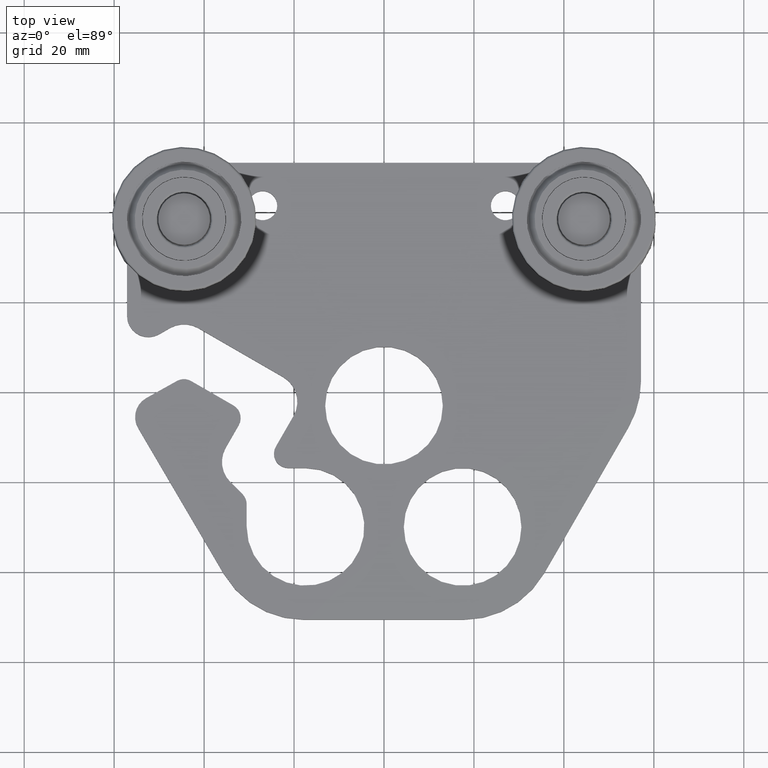
[diagram: clean part render]
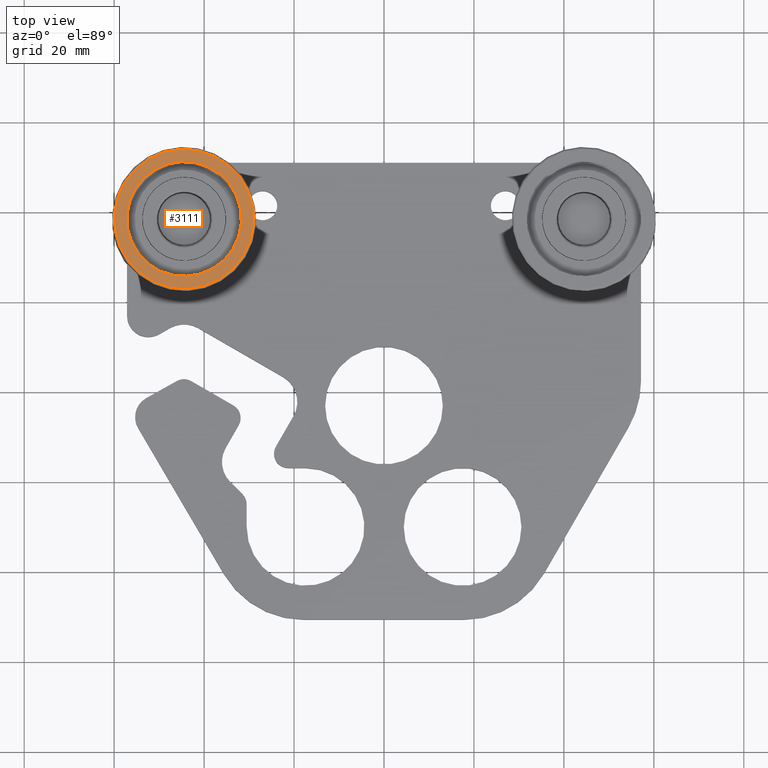
[diagram: same view with one face highlighted and labeled with its STEP entity id]
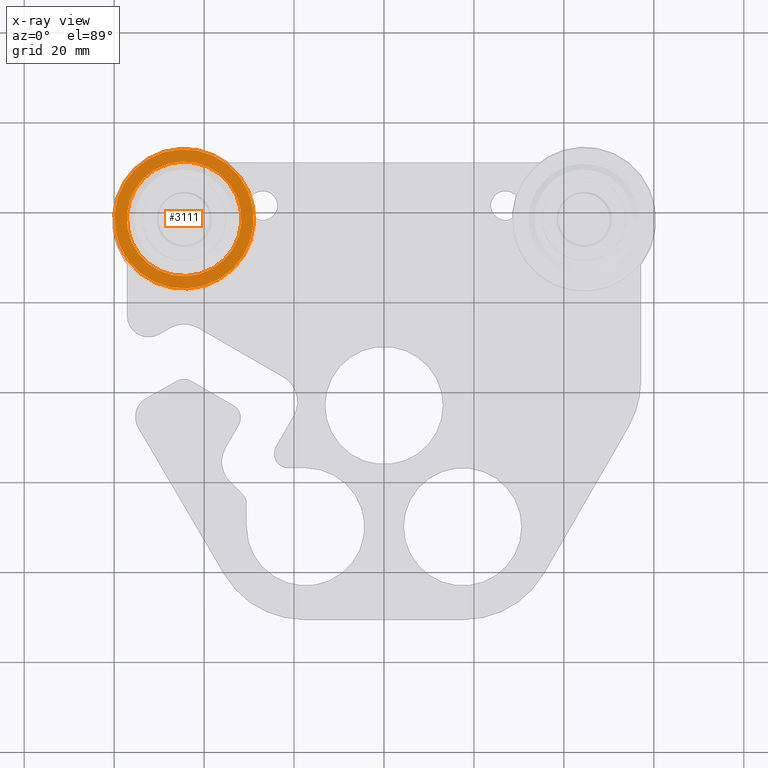
[diagram: x-ray of the same camera — body ghosted, the highlighted face saturated]
A machine part, top view. The second image highlights one B-rep face of the part: STEP entity #3111.
The next image is the same camera in x-ray: the body ghosted, the highlighted face saturated — about 0% of this face is hidden behind the body in this view.
In plain terms, the highlighted planar face has unit normal (0, 0, -1).
Its self-contained STEP definition (entity closure, byte-faithful):
#3053=CARTESIAN_POINT('',(-2.148985134104972,1.195396582901642,0.662700787401575));
#3054=VERTEX_POINT('',#3053);
#3055=CARTESIAN_POINT('',(-1.750000000000002,1.500000000000001,0.662700787401575));
#3056=DIRECTION('',(0.0,0.0,-1.0));
#3057=DIRECTION('',(-0.794840973040489,-0.606817787788104,0.0));
#3058=AXIS2_PLACEMENT_3D('',#3055,#3056,#3057);
#3059=CIRCLE('',#3058,0.501968503937008);
#3060=EDGE_CURVE('',#3054,#3054,#3059,.T.);
#3092=CARTESIAN_POINT('',(-1.750000000000002,1.500000000000001,0.662700787401575));
#3093=DIRECTION('',(0.0,0.0,-1.0));
#3094=DIRECTION('',(0.606817787788104,-0.794840973040489,0.0));
#3095=AXIS2_PLACEMENT_3D('',#3092,#3093,#3094);
#3096=PLANE('',#3095);
#3097=CARTESIAN_POINT('',(-1.264959248735137,1.870302193335261,0.662700787401575));
#3098=VERTEX_POINT('',#3097);
#3099=CARTESIAN_POINT('',(-1.750000000000002,1.500000000000001,0.662700787401575));
#3100=DIRECTION('',(0.0,0.0,1.0));
#3101=DIRECTION('',(-0.794840973040489,-0.606817787788104,0.0));
#3102=AXIS2_PLACEMENT_3D('',#3099,#3100,#3101);
#3103=CIRCLE('',#3102,0.610236220472441);
#3104=EDGE_CURVE('',#3098,#3098,#3103,.T.);
#3105=ORIENTED_EDGE('',*,*,#3104,.T.);
#3106=EDGE_LOOP('',(#3105));
#3107=FACE_OUTER_BOUND('',#3106,.T.);
#3108=ORIENTED_EDGE('',*,*,#3060,.T.);
#3109=EDGE_LOOP('',(#3108));
#3110=FACE_BOUND('',#3109,.T.);
#3111=ADVANCED_FACE('',(#3107,#3110),#3096,.F.);